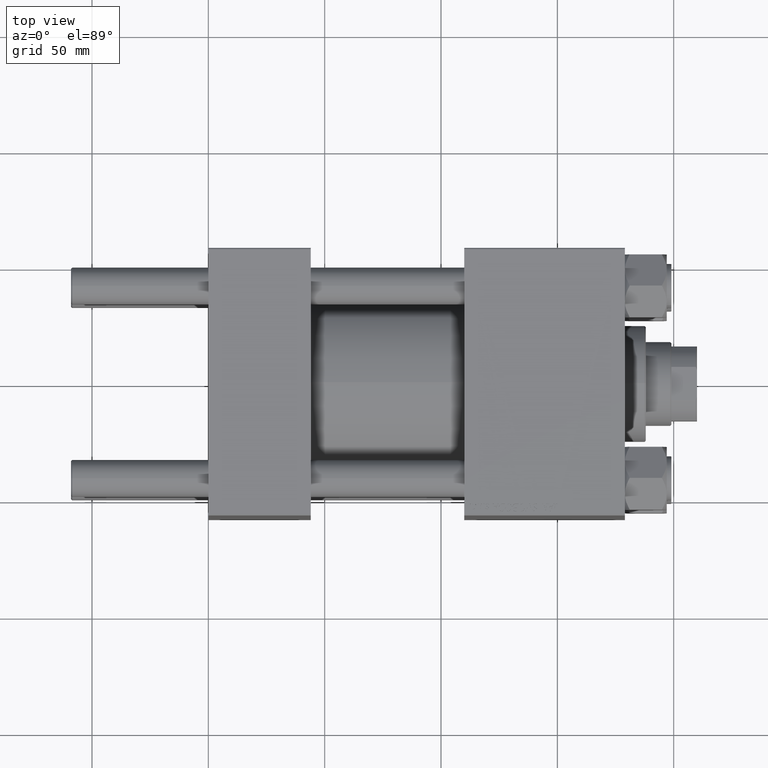
[diagram: clean part render]
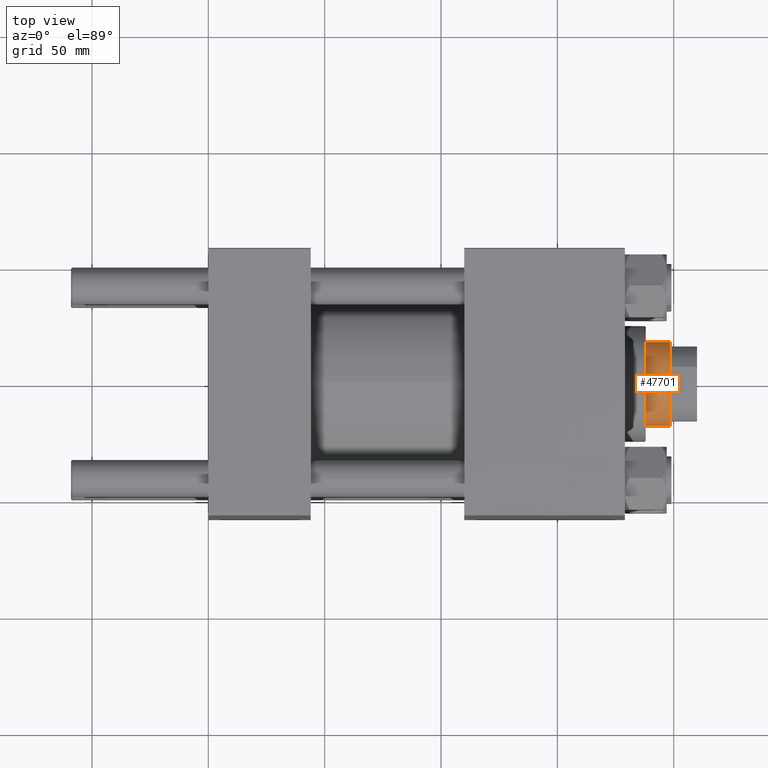
[diagram: same view with one face highlighted and labeled with its STEP entity id]
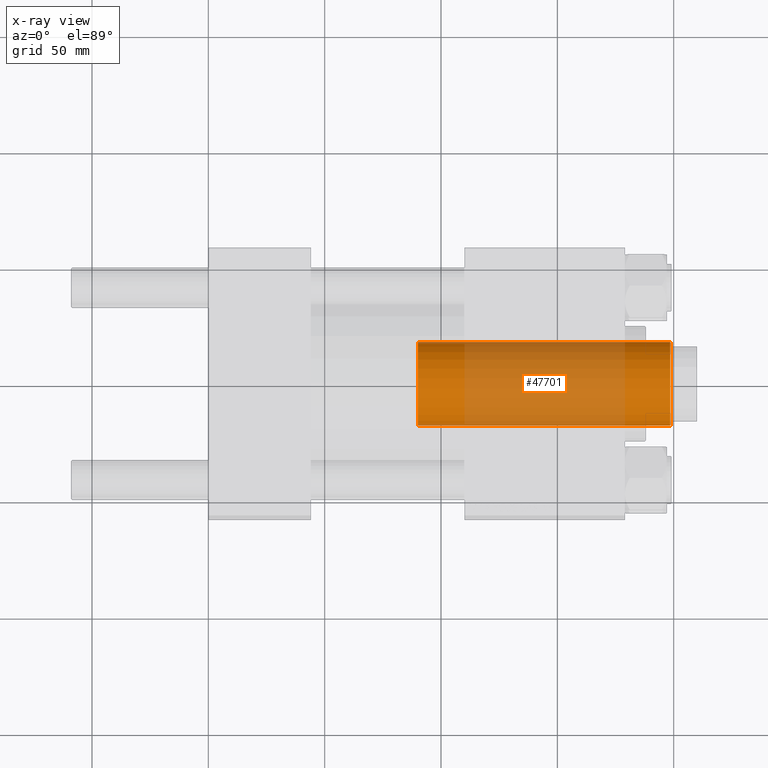
[diagram: x-ray of the same camera — body ghosted, the highlighted face saturated]
A machine part, top view. The second image highlights one B-rep face of the part: STEP entity #47701.
The next image is the same camera in x-ray: the body ghosted, the highlighted face saturated — about 64% of this face is hidden behind the body in this view.
In plain terms, the highlighted cylindrical surface (partial cylindrical patch) has radius 18 mm, axis along (-1, 0, 0).
Its self-contained STEP definition (entity closure, byte-faithful):
#505 = ORIENTED_EDGE ( 'NONE', *, *, #16368, .F. ) ;
#3220 = DIRECTION ( 'NONE',  ( 1.000000000000000000, 0.000000000000000000, 0.000000000000000000 ) ) ;
#3471 = CARTESIAN_POINT ( 'NONE',  ( 0.000000000000000000, 0.000000000000000000, 154.4999999999999716 ) ) ;
#4249 = EDGE_CURVE ( 'NONE', #13820, #11943, #47830, .T. ) ;
#4425 = VERTEX_POINT ( 'NONE', #23933 ) ;
#4540 = EDGE_LOOP ( 'NONE', ( #505, #39262, #40705, #36087 ) ) ;
#9720 = CARTESIAN_POINT ( 'NONE',  ( 18.00000000000000000, 2.204364238465235428E-15, 46.00000000000000000 ) ) ;
#10742 = CIRCLE ( 'NONE', #25360, 18.00000000000000000 ) ;
#11883 = EDGE_CURVE ( 'NONE', #4425, #13820, #10742, .T. ) ;
#11943 = VERTEX_POINT ( 'NONE', #39265 ) ;
#13058 = CARTESIAN_POINT ( 'NONE',  ( -18.00000000000000000, 0.000000000000000000, 155.0000000000000000 ) ) ;
#13229 = CARTESIAN_POINT ( 'NONE',  ( 18.00000000000000000, 2.204364238465235428E-15, 155.0000000000000000 ) ) ;
#13618 = CIRCLE ( 'NONE', #39572, 18.00000000000000000 ) ;
#13820 = VERTEX_POINT ( 'NONE', #31484 ) ;
#15366 = CYLINDRICAL_SURFACE ( 'NONE', #48799, 18.00000000000000000 ) ;
#15647 = VECTOR ( 'NONE', #48495, 1000.000000000000000 ) ;
#15881 = DIRECTION ( 'NONE',  ( -0.000000000000000000, -0.000000000000000000, -1.000000000000000000 ) ) ;
#16368 = EDGE_CURVE ( 'NONE', #4425, #28357, #40376, .T. ) ;
#22991 = CARTESIAN_POINT ( 'NONE',  ( 0.000000000000000000, 0.000000000000000000, 155.0000000000000000 ) ) ;
#23933 = CARTESIAN_POINT ( 'NONE',  ( 18.00000000000000000, 2.204364238465235428E-15, 154.4999999999999716 ) ) ;
#25360 = AXIS2_PLACEMENT_3D ( 'NONE', #3471, #35206, #3220 ) ;
#28357 = VERTEX_POINT ( 'NONE', #9720 ) ;
#29036 = DIRECTION ( 'NONE',  ( -0.000000000000000000, -0.000000000000000000, -1.000000000000000000 ) ) ;
#29260 = DIRECTION ( 'NONE',  ( 0.000000000000000000, 0.000000000000000000, 1.000000000000000000 ) ) ;
#29514 = CARTESIAN_POINT ( 'NONE',  ( 0.000000000000000000, 0.000000000000000000, 46.00000000000000000 ) ) ;
#31484 = CARTESIAN_POINT ( 'NONE',  ( -18.00000000000000000, 0.000000000000000000, 154.4999999999999716 ) ) ;
#34008 = VECTOR ( 'NONE', #29036, 1000.000000000000000 ) ;
#34689 = EDGE_CURVE ( 'NONE', #11943, #28357, #13618, .T. ) ;
#35206 = DIRECTION ( 'NONE',  ( 0.000000000000000000, 0.000000000000000000, -1.000000000000000000 ) ) ;
#36087 = ORIENTED_EDGE ( 'NONE', *, *, #34689, .T. ) ;
#39226 = DIRECTION ( 'NONE',  ( -1.000000000000000000, 0.000000000000000000, 0.000000000000000000 ) ) ;
#39262 = ORIENTED_EDGE ( 'NONE', *, *, #11883, .T. ) ;
#39265 = CARTESIAN_POINT ( 'NONE',  ( -18.00000000000000000, 0.000000000000000000, 46.00000000000000000 ) ) ;
#39572 = AXIS2_PLACEMENT_3D ( 'NONE', #29514, #29260, #40432 ) ;
#40376 = LINE ( 'NONE', #13229, #15647 ) ;
#40432 = DIRECTION ( 'NONE',  ( 1.000000000000000000, 0.000000000000000000, 0.000000000000000000 ) ) ;
#40705 = ORIENTED_EDGE ( 'NONE', *, *, #4249, .T. ) ;
#47701 = ADVANCED_FACE ( 'NONE', ( #50133 ), #15366, .T. ) ;
#47830 = LINE ( 'NONE', #13058, #34008 ) ;
#48495 = DIRECTION ( 'NONE',  ( -0.000000000000000000, -0.000000000000000000, -1.000000000000000000 ) ) ;
#48799 = AXIS2_PLACEMENT_3D ( 'NONE', #22991, #15881, #39226 ) ;
#50133 = FACE_OUTER_BOUND ( 'NONE', #4540, .T. ) ;